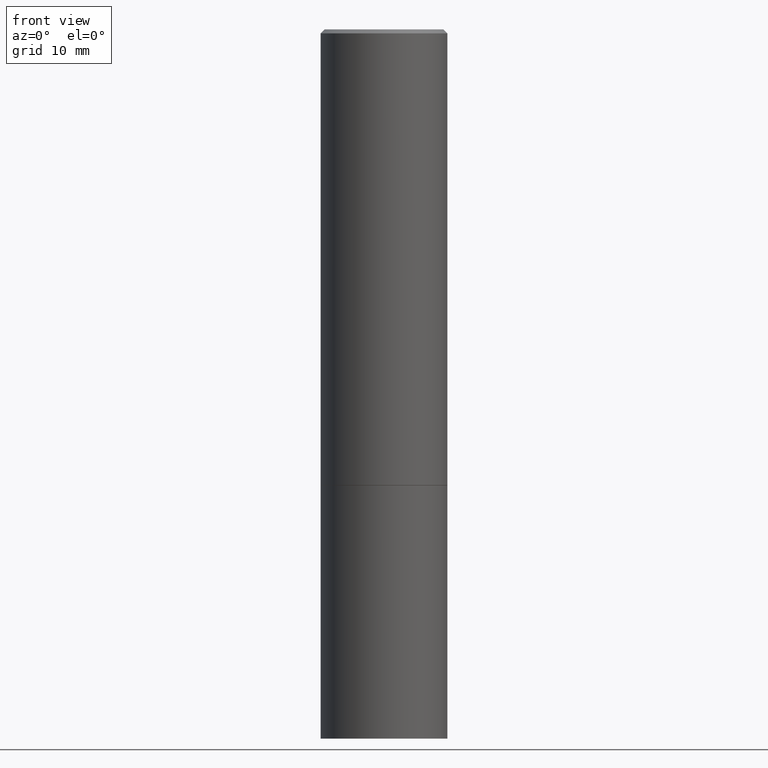
[diagram: clean part render]
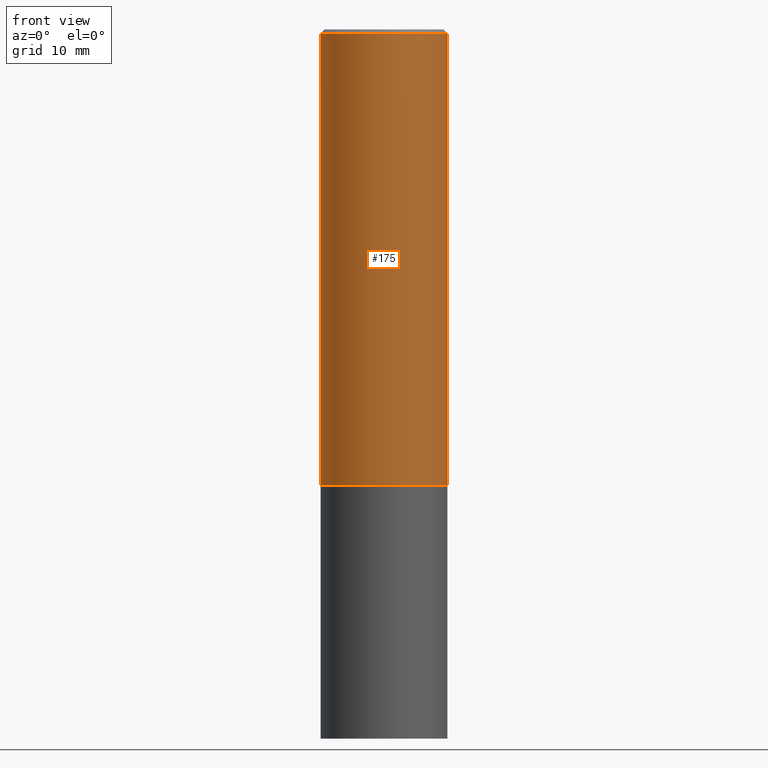
[diagram: same view with one face highlighted and labeled with its STEP entity id]
A machine part, front view. The second image highlights one B-rep face of the part: STEP entity #175.
In plain terms, the highlighted cylindrical surface (partial cylindrical patch) has radius 7.9375 mm, axis along (-0, 0, 1).
Its self-contained STEP definition (entity closure, byte-faithful):
#7 = VECTOR ( 'NONE', #283, 39.37007874015748143 ) ;
#15 = DIRECTION ( 'NONE',  ( 1.000000000000000000, -6.982962677686266711E-15, 4.876176775795936353E-29 ) ) ;
#17 = DIRECTION ( 'NONE',  ( 1.000000000000000000, -6.982962677686266711E-15, 0.000000000000000000 ) ) ;
#26 = VERTEX_POINT ( 'NONE', #141 ) ;
#34 = CARTESIAN_POINT ( 'NONE',  ( 0.3125000000000000000, -1.003451736783519063E-14, -2.248999999999999666 ) ) ;
#36 = ORIENTED_EDGE ( 'NONE', *, *, #192, .F. ) ;
#37 = CARTESIAN_POINT ( 'NONE',  ( -0.3124999999999999445, 2.220446049250312686E-15, -1.537167215704657671E-29 ) ) ;
#54 = EDGE_CURVE ( 'NONE', #316, #103, #293, .T. ) ;
#59 = CARTESIAN_POINT ( 'NONE',  ( 5.499859345110371740E-29, -7.852341531058233864E-15, -2.248999999999999666 ) ) ;
#70 = DIRECTION ( 'NONE',  ( -2.445468806185136597E-29, 3.491481338843145583E-15, 1.000000000000000000 ) ) ;
#73 = CARTESIAN_POINT ( 'NONE',  ( -0.3124999999999998890, 2.112346210000094260E-15, -0.02000000000000006981 ) ) ;
#92 = AXIS2_PLACEMENT_3D ( 'NONE', #161, #301, #17 ) ;
#96 = DIRECTION ( 'NONE',  ( -2.445468806185136877E-29, 3.491481338843145188E-15, 1.000000000000000000 ) ) ;
#99 = EDGE_CURVE ( 'NONE', #235, #26, #219, .T. ) ;
#103 = VERTEX_POINT ( 'NONE', #34 ) ;
#105 = LINE ( 'NONE', #200, #7 ) ;
#112 = ORIENTED_EDGE ( 'NONE', *, *, #99, .F. ) ;
#141 = CARTESIAN_POINT ( 'NONE',  ( 0.3124999999999998890, -2.213735251080466123E-15, -0.02000000000000006981 ) ) ;
#145 = AXIS2_PLACEMENT_3D ( 'NONE', #251, #351, #15 ) ;
#152 = DIRECTION ( 'NONE',  ( 1.000000000000000000, -6.982962677686265133E-15, 0.000000000000000000 ) ) ;
#161 = CARTESIAN_POINT ( 'NONE',  ( 4.890937612370289799E-31, -6.982962677686315028E-17, -0.02000000000000006981 ) ) ;
#172 = ORIENTED_EDGE ( 'NONE', *, *, #54, .T. ) ;
#174 = ORIENTED_EDGE ( 'NONE', *, *, #228, .T. ) ;
#175 = ADVANCED_FACE ( 'NONE', ( #247 ), #306, .T. ) ;
#181 = AXIS2_PLACEMENT_3D ( 'NONE', #59, #70, #152 ) ;
#192 = EDGE_CURVE ( 'NONE', #316, #235, #281, .T. ) ;
#200 = CARTESIAN_POINT ( 'NONE',  ( 0.3124999999999999445, -2.182175836776957953E-15, 1.523805242436229795E-29 ) ) ;
#219 = CIRCLE ( 'NONE', #92, 0.3124999999999998890 ) ;
#228 = EDGE_CURVE ( 'NONE', #103, #26, #105, .T. ) ;
#235 = VERTEX_POINT ( 'NONE', #73 ) ;
#247 = FACE_OUTER_BOUND ( 'NONE', #345, .T. ) ;
#251 = CARTESIAN_POINT ( 'NONE',  ( 0.000000000000000000, 0.000000000000000000, 0.000000000000000000 ) ) ;
#281 = LINE ( 'NONE', #37, #284 ) ;
#283 = DIRECTION ( 'NONE',  ( -2.445468806185136877E-29, 3.491481338843145188E-15, 1.000000000000000000 ) ) ;
#284 = VECTOR ( 'NONE', #96, 39.37007874015748143 ) ;
#286 = CARTESIAN_POINT ( 'NONE',  ( -0.3125000000000000000, -1.740639529667234514E-15, -2.248999999999999666 ) ) ;
#293 = CIRCLE ( 'NONE', #181, 0.3125000000000000000 ) ;
#301 = DIRECTION ( 'NONE',  ( -2.445468806185136597E-29, 3.491481338843145583E-15, 1.000000000000000000 ) ) ;
#306 = CYLINDRICAL_SURFACE ( 'NONE', #145, 0.3124999999999999445 ) ;
#316 = VERTEX_POINT ( 'NONE', #286 ) ;
#345 = EDGE_LOOP ( 'NONE', ( #36, #172, #174, #112 ) ) ;
#351 = DIRECTION ( 'NONE',  ( -2.445468806185136597E-29, 3.491481338843145583E-15, 1.000000000000000000 ) ) ;